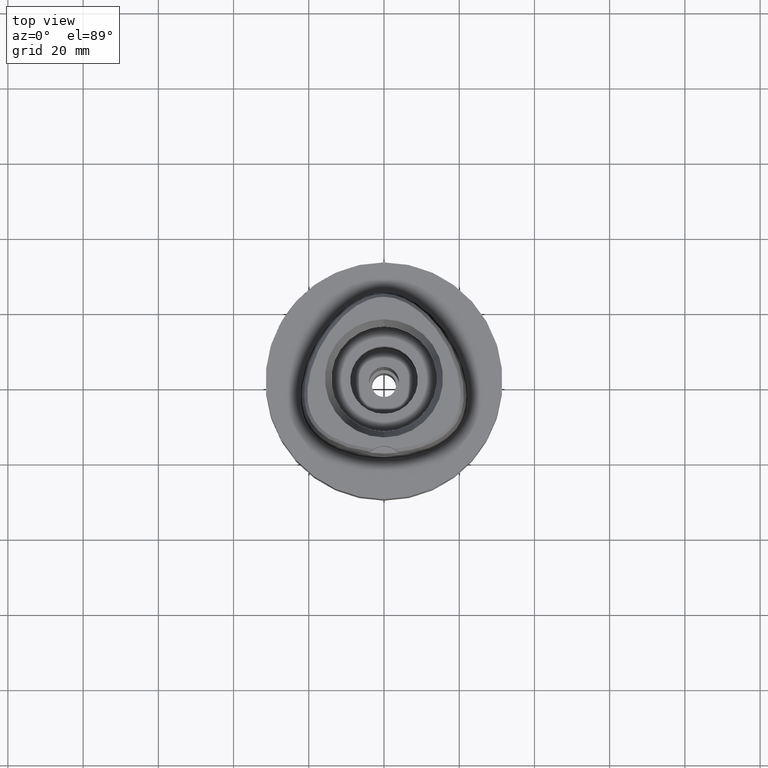
[diagram: clean part render]
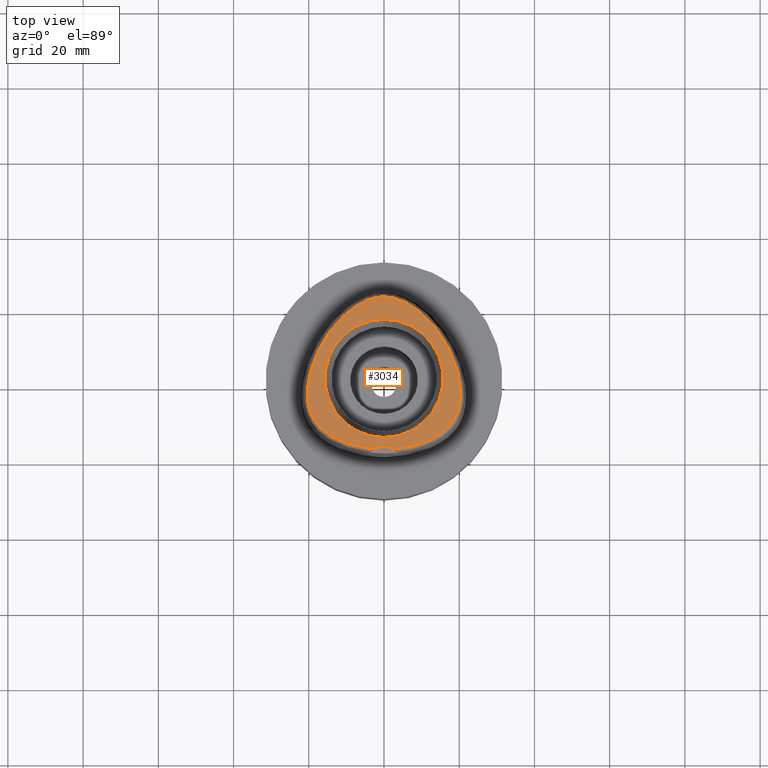
[diagram: same view with one face highlighted and labeled with its STEP entity id]
A machine part, top view. The second image highlights one B-rep face of the part: STEP entity #3034.
In plain terms, the highlighted planar face has unit normal (0, 0, 1).
Its self-contained STEP definition (entity closure, byte-faithful):
#39 = CARTESIAN_POINT ( 'NONE',  ( 15.72078707640275574, -14.29615620309373725, 38.00000000000339639 ) ) ;
#63 = CARTESIAN_POINT ( 'NONE',  ( 0.0000000000000000000, 0.0000000000000000000, 38.00000000000000000 ) ) ;
#174 = CARTESIAN_POINT ( 'NONE',  ( -19.28591707036956038, -9.869682450885980174, 37.99999999999725731 ) ) ;
#202 = CARTESIAN_POINT ( 'NONE',  ( -12.37132652997196303, -16.34104299087801948, 38.00000000000271427 ) ) ;
#210 = CARTESIAN_POINT ( 'NONE',  ( 5.894487344449604649, 20.13186406531790951, 37.99999999999757705 ) ) ;
#230 = CARTESIAN_POINT ( 'NONE',  ( -16.09805956313946140, 9.908742513515788275, 38.00000000000823519 ) ) ;
#260 = CARTESIAN_POINT ( 'NONE',  ( -2.841965291530351490, -18.76757795571605669, 37.99999999999733546 ) ) ;
#264 = CARTESIAN_POINT ( 'NONE',  ( 3.482188079159548089, 21.13472718027537667, 37.99999999999935341 ) ) ;
#281 = CARTESIAN_POINT ( 'NONE',  ( -17.60426951086551739, 7.098774535281354048, 37.99999999999950262 ) ) ;
#311 = CIRCLE ( 'NONE', #4562, 15.71487483155999776 ) ;
#326 = CARTESIAN_POINT ( 'NONE',  ( 14.21382211799300244, -15.34284287400313751, 37.99999999999565858 ) ) ;
#399 = CARTESIAN_POINT ( 'NONE',  ( 16.93855157777965914, -13.22377441789464747, 37.99999999999339906 ) ) ;
#405 = CARTESIAN_POINT ( 'NONE',  ( -1.323674540693833279, 21.61098849315860448, 38.00000000000457590 ) ) ;
#423 = CARTESIAN_POINT ( 'NONE',  ( 19.64387775267860903, 1.522048414457948695, 37.99999999999600675 ) ) ;
#566 = CARTESIAN_POINT ( 'NONE',  ( -4.254559144977255514, 20.86660163697503023, 38.00000000000090949 ) ) ;
#596 = CARTESIAN_POINT ( 'NONE',  ( 5.059249257020407065, 20.53399274679166808, 37.99999999999823075 ) ) ;
#610 = DIRECTION ( 'NONE',  ( 0.0000000000000000000, 0.0000000000000000000, 1.000000000000000000 ) ) ;
#612 = VERTEX_POINT ( 'NONE', #2193 ) ;
#615 = CARTESIAN_POINT ( 'NONE',  ( -18.31748213707557582, -11.58791794387549778, 38.00000000000081002 ) ) ;
#637 = FACE_BOUND ( 'NONE', #3365, .T. ) ;
#645 = CARTESIAN_POINT ( 'NONE',  ( -15.24692477332460605, 11.25717358966358006, 38.00000000000461853 ) ) ;
#671 = CARTESIAN_POINT ( 'NONE',  ( -20.16012968311358478, -1.009698174524759962, 38.00000000000622435 ) ) ;
#694 = EDGE_CURVE ( 'NONE', #2716, #2167, #2762, .T. ) ;
#727 = CARTESIAN_POINT ( 'NONE',  ( 16.09765529146527996, 9.909410920132627254, 37.99999999999869971 ) ) ;
#743 = CARTESIAN_POINT ( 'NONE',  ( 11.32341394162765802, -16.80569392800552464, 37.99999999999633360 ) ) ;
#764 = CARTESIAN_POINT ( 'NONE',  ( 20.40062138794888469, -4.309334958867679255, 37.99999999999992895 ) ) ;
#789 = CARTESIAN_POINT ( 'NONE',  ( 16.88599964842928358, 8.518708218769949880, 38.00000000000226663 ) ) ;
#815 = CARTESIAN_POINT ( 'NONE',  ( 19.98468477322872161, -7.807876343102972072, 37.99999999999874234 ) ) ;
#957 = CARTESIAN_POINT ( 'NONE',  ( -15.71788912669270033, -14.29843101566032004, 37.99999999999513278 ) ) ;
#983 = CARTESIAN_POINT ( 'NONE',  ( -16.93638123745300916, -13.22593246128060329, 37.99999999999871392 ) ) ;
#1005 = CARTESIAN_POINT ( 'NONE',  ( -6.188376196366591309, -18.31830638230986352, 37.99999999999686651 ) ) ;
#1013 = CARTESIAN_POINT ( 'NONE',  ( 9.524842839487678958, 17.70516372194755306, 38.00000000000531486 ) ) ;
#1032 = CARTESIAN_POINT ( 'NONE',  ( -3.522896839654260148, -18.70811514173244561, 38.00000000000022737 ) ) ;
#1056 = CARTESIAN_POINT ( 'NONE',  ( -9.524337278000954754, 17.70558492631516501, 38.00000000000309797 ) ) ;
#1057 = AXIS2_PLACEMENT_3D ( 'NONE', #1487, #3386, #3791 ) ;
#1098 = CARTESIAN_POINT ( 'NONE',  ( 20.38292172607743069, -3.276278498261492533, 38.00000000000055422 ) ) ;
#1108 = CARTESIAN_POINT ( 'NONE',  ( 15.24661770199240252, 11.25762885478513020, 37.99999999999914024 ) ) ;
#1122 = CARTESIAN_POINT ( 'NONE',  ( 19.94150023627877033, 0.2261566111943263124, 38.00000000000039080 ) ) ;
#1151 = CARTESIAN_POINT ( 'NONE',  ( 17.91165267839043906, -12.13575389397787241, 38.00000000000670752 ) ) ;
#1175 = CARTESIAN_POINT ( 'NONE',  ( 18.24247239569413992, 5.672548708072100432, 38.00000000000159162 ) ) ;
#1242 = ORIENTED_EDGE ( 'NONE', *, *, #2598, .F. ) ;
#1329 = ORIENTED_EDGE ( 'NONE', *, *, #694, .F. ) ;
#1361 = CARTESIAN_POINT ( 'NONE',  ( -10.17136073855416001, -17.24644253470294331, 38.00000000000351719 ) ) ;
#1389 = CARTESIAN_POINT ( 'NONE',  ( -19.54919922642051944, -9.228169790567722686, 38.00000000000732570 ) ) ;
#1394 = CARTESIAN_POINT ( 'NONE',  ( 8.578848111816313349, 18.44609846599398750, 37.99999999999702993 ) ) ;
#1412 = CARTESIAN_POINT ( 'NONE',  ( -19.64434054693060716, 1.520253387635275066, 37.99999999999936051 ) ) ;
#1434 = CARTESIAN_POINT ( 'NONE',  ( -2.682279906006999948, -18.78035848609999903, 38.00000000000000000 ) ) ;
#1456 = ORIENTED_EDGE ( 'NONE', *, *, #1745, .F. ) ;
#1487 = CARTESIAN_POINT ( 'NONE',  ( 0.0000000000000000000, -23.00000000000000000, 38.00000000000000000 ) ) ;
#1527 = CARTESIAN_POINT ( 'NONE',  ( 20.27923816685611058, -6.179850483268304551, 38.00000000000630251 ) ) ;
#1554 = CARTESIAN_POINT ( 'NONE',  ( 20.36412151361016143, -5.276385427453814003, 38.00000000000321165 ) ) ;
#1559 = EDGE_CURVE ( 'NONE', #2167, #2716, #311, .T. ) ;
#1717 = EDGE_CURVE ( 'NONE', #612, #4742, #4397, .T. ) ;
#1745 = EDGE_CURVE ( 'NONE', #2964, #612, #4758, .T. ) ;
#1765 = CARTESIAN_POINT ( 'NONE',  ( -17.45119705493653939, -12.68365517585497848, 38.00000000000139266 ) ) ;
#1772 = CARTESIAN_POINT ( 'NONE',  ( 2.736932690726892492, 21.34527940056741713, 38.00000000000159162 ) ) ;
#1787 = PLANE ( 'NONE',  #1932 ) ;
#1791 = CARTESIAN_POINT ( 'NONE',  ( -19.98419490691662759, -7.809898894995680685, 38.00000000000208900 ) ) ;
#1815 = CARTESIAN_POINT ( 'NONE',  ( -10.48962422759582402, 16.86631853278957749, 38.00000000000845546 ) ) ;
#1820 = CARTESIAN_POINT ( 'NONE',  ( 0.6513209347955158934, 21.67370899611583113, 38.00000000000384404 ) ) ;
#1838 = CARTESIAN_POINT ( 'NONE',  ( -18.24302769441894156, 5.671232572957634055, 37.99999999999837286 ) ) ;
#1884 = CARTESIAN_POINT ( 'NONE',  ( 18.99619228226005063, -10.46780014453122476, 37.99999999999647571 ) ) ;
#1932 = AXIS2_PLACEMENT_3D ( 'NONE', #2165, #610, #3677 ) ;
#1934 = DIRECTION ( 'NONE',  ( 0.0000000000000000000, -1.000000000000000000, 0.0000000000000000000 ) ) ;
#1935 = CARTESIAN_POINT ( 'NONE',  ( 18.31883910943179217, -11.58595831188103986, 37.99999999999685230 ) ) ;
#1961 = CARTESIAN_POINT ( 'NONE',  ( 20.30478359881587380, -2.175347700950692076, 37.99999999999565148 ) ) ;
#1984 = CARTESIAN_POINT ( 'NONE',  ( 10.17751632998346345, -17.24426134458756721, 37.99999999999538147 ) ) ;
#1987 = ORIENTED_EDGE ( 'NONE', *, *, #1559, .F. ) ;
#2119 = CARTESIAN_POINT ( 'NONE',  ( -4.706994425064161547, -18.56721852572600184, 38.00000000000557066 ) ) ;
#2142 = CARTESIAN_POINT ( 'NONE',  ( -8.930096025510344759, -17.65000298921228961, 38.00000000000022737 ) ) ;
#2165 = CARTESIAN_POINT ( 'NONE',  ( 0.0000000000000000000, 0.0000000000000000000, 38.00000000000000000 ) ) ;
#2167 = VERTEX_POINT ( 'NONE', #3119 ) ;
#2170 = CARTESIAN_POINT ( 'NONE',  ( -18.79649882724622145, 4.256255933891085697, 37.99999999999914735 ) ) ;
#2193 = CARTESIAN_POINT ( 'NONE',  ( 2.682287482605000051, -18.78036330228999873, 38.00000000000000000 ) ) ;
#2198 = CARTESIAN_POINT ( 'NONE',  ( -17.91005512243349429, -12.13778127739936608, 38.00000000000377298 ) ) ;
#2207 = CARTESIAN_POINT ( 'NONE',  ( 0.2185816947241431829, 21.68728795389630903, 38.00000000000012079 ) ) ;
#2224 = CARTESIAN_POINT ( 'NONE',  ( -19.78262210840384938, -8.543146992552404839, 38.00000000000411404 ) ) ;
#2272 = CARTESIAN_POINT ( 'NONE',  ( -3.470663397112000128E-11, 21.68728795390000030, 38.00000000000000000 ) ) ;
#2279 = CARTESIAN_POINT ( 'NONE',  ( 11.46587147800212136, 15.92717600803108091, 38.00000000000191847 ) ) ;
#2318 = CARTESIAN_POINT ( 'NONE',  ( 18.67722910597889552, -11.03372143227694302, 38.00000000000062528 ) ) ;
#2334 = ORIENTED_EDGE ( 'NONE', *, *, #1717, .F. ) ;
#2343 = CARTESIAN_POINT ( 'NONE',  ( 17.45306278053404725, -12.68156296993558918, 38.00000000000478195 ) ) ;
#2368 = CARTESIAN_POINT ( 'NONE',  ( 19.54993126782024859, -9.226212439885449257, 38.00000000000204636 ) ) ;
#2477 = CARTESIAN_POINT ( 'NONE',  ( -3.470663397112000128E-11, 21.68728795390000030, 38.00000000000000000 ) ) ;
#2508 = CARTESIAN_POINT ( 'NONE',  ( -5.893543501600334800, 20.13235399351726684, 38.00000000000839862 ) ) ;
#2535 = CARTESIAN_POINT ( 'NONE',  ( -15.00295592773600362, -14.82617991125479762, 37.99999999999990763 ) ) ;
#2541 = CARTESIAN_POINT ( 'NONE',  ( 1.325020189552575278, 21.61081414409154533, 37.99999999999590017 ) ) ;
#2566 = CARTESIAN_POINT ( 'NONE',  ( 10.48999540691172783, 16.86597469869775168, 38.00000000000228084 ) ) ;
#2587 = CARTESIAN_POINT ( 'NONE',  ( -18.99520880204253359, -10.46968343926287481, 38.00000000000647304 ) ) ;
#2598 = EDGE_CURVE ( 'NONE', #4742, #2964, #3010, .T. ) ;
#2669 = CARTESIAN_POINT ( 'NONE',  ( 13.40430406168803223, 13.76274261013368871, 38.00000000000369482 ) ) ;
#2685 = CARTESIAN_POINT ( 'NONE',  ( 18.79595068775957856, 4.257753965101723992, 38.00000000000530065 ) ) ;
#2716 = VERTEX_POINT ( 'NONE', #4601 ) ;
#2733 = CARTESIAN_POINT ( 'NONE',  ( 17.60373714028467518, 7.099883643192264948, 37.99999999999456435 ) ) ;
#2738 = CARTESIAN_POINT ( 'NONE',  ( -0.6498990081534165020, 21.67378274708351782, 37.99999999999963052 ) ) ;
#2762 = CIRCLE ( 'NONE', #4387, 15.71487483155999776 ) ;
#2892 = CARTESIAN_POINT ( 'NONE',  ( -7.655222869371210770, 19.09452359226497720, 37.99999999999389644 ) ) ;
#2916 = CARTESIAN_POINT ( 'NONE',  ( -11.31790883121226976, -16.80796958613498049, 38.00000000000162714 ) ) ;
#2943 = CARTESIAN_POINT ( 'NONE',  ( -20.40060226222436057, -4.311417605381343776, 38.00000000000304823 ) ) ;
#2964 = VERTEX_POINT ( 'NONE', #2477 ) ;
#2965 = CARTESIAN_POINT ( 'NONE',  ( -11.46564124494203440, 15.92741340513355652, 38.00000000000192557 ) ) ;
#2995 = CARTESIAN_POINT ( 'NONE',  ( -20.38301517462850398, -3.278344853327613162, 38.00000000000442668 ) ) ;
#3010 = B_SPLINE_CURVE_WITH_KNOTS ( 'NONE', 3,
 ( #1434, #260, #1032, #2119, #1005, #3302, #2142, #1361, #2916, #202, #4476, #4863, #2535, #957, #4090, #983, #1765, #2198, #615, #4892, #2587, #174, #1389, #2224, #1791, #4175, #3783, #3330, #2943, #2995, #4115, #671, #4525, #1412, #4917, #2170, #1838, #281, #3730, #230, #645, #3358, #4143, #4554, #2965, #1815, #1056, #4836, #2892, #4449, #2508, #4065, #566, #5042, #3476, #4989, #405, #2738, #3427, #2272 ),
 .UNSPECIFIED., .F., .F.,
 ( 4, 1, 1, 1, 1, 1, 1, 1, 1, 1, 1, 1, 1, 1, 1, 1, 1, 1, 1, 1, 1, 1, 1, 1, 1, 1, 1, 1, 1, 1, 1, 1, 1, 1, 1, 1, 1, 1, 1, 1, 1, 1, 1, 1, 1, 1, 1, 1, 1, 1, 1, 1, 1, 1, 1, 1, 1, 4 ),
 ( 0.0000000000000000000, 0.005420919554200098744, 0.02318126027639999531, 0.04094160099879995407, 0.05870194172099996166, 0.07646228244330000035, 0.09422262316550000794, 0.1119829638877999356, 0.1297433046099999432, 0.1475036453321999508, 0.1652639860544999895, 0.1830243267768000281, 0.2007846674991000668, 0.2185450082212999634, 0.2363053489436000021, 0.2540656896658000097, 0.2718260303881000484, 0.2895863711103000560, 0.3073467118325999836, 0.3251070525547999912, 0.3428673932771000299, 0.3606277339994000686, 0.3783880747216000762, 0.3961484154438998928, 0.4139087561661000114, 0.4316690968884000501, 0.4494294376106000577, 0.4671897783328999854, 0.4849501190552000240, 0.5027104597774000316, 0.5204708004996999593, 0.5382311412219000779, 0.5559914819442000056, 0.5737518226664000132, 0.5915121633886999408, 0.6092725041108999484, 0.6270328448331999871, 0.6447931855555000258, 0.6625535262777000334, 0.6803138669999999610, 0.6980742077221999686, 0.7158345484445000073, 0.7335948891667000149, 0.7513552298890000536, 0.7691155706112000612, 0.7868759113336000199, 0.8046362520558000275, 0.8223965927780999552, 0.8401569335002999628, 0.8579172742224999704, 0.8756776149448000091, 0.8934379556670000166, 0.9111982963893099363, 0.9289586371115700070, 0.9467189778338299666, 0.9644793185560800453, 0.9822396592783400049, 1.000000000000000000 ),
 .UNSPECIFIED. ) ;
#3034 = ADVANCED_FACE ( 'NONE', ( #4136, #637 ), #1787, .T. ) ;
#3045 = CARTESIAN_POINT ( 'NONE',  ( -3.470663397112000128E-11, 21.68728795390000030, 38.00000000000000000 ) ) ;
#3087 = CARTESIAN_POINT ( 'NONE',  ( 3.529311563348320302, -18.70747079910044874, 37.99999999999880629 ) ) ;
#3114 = CARTESIAN_POINT ( 'NONE',  ( 19.78323211893120259, -8.541156231035595070, 37.99999999999450040 ) ) ;
#3119 = CARTESIAN_POINT ( 'NONE',  ( 0.0000000000000000000, 15.71487483155999776, 38.00000000000000000 ) ) ;
#3138 = CARTESIAN_POINT ( 'NONE',  ( 16.36283630828731361, -13.76236604534974184, 38.00000000000290612 ) ) ;
#3164 = CARTESIAN_POINT ( 'NONE',  ( 19.26272899268737859, 2.870227893749708326, 37.99999999999602096 ) ) ;
#3302 = CARTESIAN_POINT ( 'NONE',  ( -7.599370508970438642, -18.01010694911437682, 38.00000000000515143 ) ) ;
#3330 = CARTESIAN_POINT ( 'NONE',  ( -20.36398648679623591, -5.278470727085037950, 38.00000000000417799 ) ) ;
#3338 = CARTESIAN_POINT ( 'NONE',  ( 6.760281394350775130, 19.65404668909433994, 37.99999999999548095 ) ) ;
#3358 = CARTESIAN_POINT ( 'NONE',  ( -14.34402387965564962, 12.54761970512539548, 37.99999999999857891 ) ) ;
#3365 = EDGE_LOOP ( 'NONE', ( #1329, #1987 ) ) ;
#3386 = DIRECTION ( 'NONE',  ( 0.0000000000000000000, 0.0000000000000000000, 1.000000000000000000 ) ) ;
#3407 = DIRECTION ( 'NONE',  ( 0.0000000000000000000, 0.0000000000000000000, 1.000000000000000000 ) ) ;
#3427 = CARTESIAN_POINT ( 'NONE',  ( -0.2181979014508448056, 21.68728795389296948, 37.99999999999807443 ) ) ;
#3446 = CARTESIAN_POINT ( 'NONE',  ( 4.715576077241646402, -18.56597918135144454, 37.99999999999459277 ) ) ;
#3471 = CARTESIAN_POINT ( 'NONE',  ( 19.28677546796512132, -9.867757137505527965, 38.00000000000315481 ) ) ;
#3476 = CARTESIAN_POINT ( 'NONE',  ( -2.735698246183218885, 21.34559102902296956, 37.99999999999954525 ) ) ;
#3523 = CARTESIAN_POINT ( 'NONE',  ( 6.196495988003598576, -18.31673538864666995, 38.00000000000319744 ) ) ;
#3677 = DIRECTION ( 'NONE',  ( 1.000000000000000000, 0.0000000000000000000, 0.0000000000000000000 ) ) ;
#3730 = CARTESIAN_POINT ( 'NONE',  ( -16.88647904405563338, 8.517821442301711343, 38.00000000000228795 ) ) ;
#3738 = CARTESIAN_POINT ( 'NONE',  ( 0.0000000000000000000, 0.0000000000000000000, 38.00000000000000000 ) ) ;
#3766 = CARTESIAN_POINT ( 'NONE',  ( 2.018320379028204492, 21.50256508436723379, 37.99999999999642597 ) ) ;
#3783 = CARTESIAN_POINT ( 'NONE',  ( -20.27898581532205569, -6.181921586190009421, 38.00000000000273559 ) ) ;
#3791 = DIRECTION ( 'NONE',  ( 0.0000000000000000000, 1.000000000000000000, 0.0000000000000000000 ) ) ;
#3902 = CARTESIAN_POINT ( 'NONE',  ( 15.00628712263134013, -14.82385870794641569, 37.99999999999631939 ) ) ;
#3923 = CARTESIAN_POINT ( 'NONE',  ( 20.15127154947105126, -7.022178451340995942, 38.00000000000486011 ) ) ;
#4065 = CARTESIAN_POINT ( 'NONE',  ( -5.058220461389083766, 20.53445508814491305, 38.00000000000043343 ) ) ;
#4090 = CARTESIAN_POINT ( 'NONE',  ( -16.36032397153500639, -13.76458520345290459, 38.00000000000711253 ) ) ;
#4097 = CARTESIAN_POINT ( 'NONE',  ( 4.255661039972379989, 20.86618068829756822, 37.99999999999899103 ) ) ;
#4115 = CARTESIAN_POINT ( 'NONE',  ( -20.30498420086185618, -2.177378896258180152, 38.00000000000118661 ) ) ;
#4136 = FACE_OUTER_BOUND ( 'NONE', #4332, .T. ) ;
#4143 = CARTESIAN_POINT ( 'NONE',  ( -13.40435640711573484, 13.76268382997008999, 37.99999999999655387 ) ) ;
#4175 = CARTESIAN_POINT ( 'NONE',  ( -20.15090095364617184, -7.024227649787116334, 38.00000000000301270 ) ) ;
#4219 = CARTESIAN_POINT ( 'NONE',  ( 2.845098933833445809, -18.76733062685850584, 37.99999999999891998 ) ) ;
#4228 = CARTESIAN_POINT ( 'NONE',  ( 14.34383722811378092, 12.54786717290380693, 37.99999999999524647 ) ) ;
#4244 = CARTESIAN_POINT ( 'NONE',  ( 13.33890749495301975, -15.84912955619993014, 37.99999999999462119 ) ) ;
#4290 = DIRECTION ( 'NONE',  ( 0.0000000000000000000, 0.0000000000000000000, 1.000000000000000000 ) ) ;
#4292 = CARTESIAN_POINT ( 'NONE',  ( 12.37622418510070865, -16.33871033285774388, 37.99999999999786127 ) ) ;
#4332 = EDGE_LOOP ( 'NONE', ( #1456, #1242, #2334 ) ) ;
#4387 = AXIS2_PLACEMENT_3D ( 'NONE', #63, #4290, #1934 ) ;
#4397 = CIRCLE ( 'NONE', #1057, 5.000000000000000888 ) ;
#4449 = CARTESIAN_POINT ( 'NONE',  ( -6.759433772716816335, 19.65454812513036842, 37.99999999999797495 ) ) ;
#4476 = CARTESIAN_POINT ( 'NONE',  ( -13.33457781970473910, -15.85148397417684230, 38.00000000000743938 ) ) ;
#4525 = CARTESIAN_POINT ( 'NONE',  ( -19.94188961899723367, 0.2242544969874663841, 38.00000000000742517 ) ) ;
#4554 = CARTESIAN_POINT ( 'NONE',  ( -12.44116897271238642, 14.89128547409908698, 38.00000000000505196 ) ) ;
#4562 = AXIS2_PLACEMENT_3D ( 'NONE', #3738, #3407, #4950 ) ;
#4601 = CARTESIAN_POINT ( 'NONE',  ( 0.0000000000000000000, -15.71487483155999776, 38.00000000000000000 ) ) ;
#4605 = CARTESIAN_POINT ( 'NONE',  ( 12.44125753246233756, 14.89118158853577434, 37.99999999999744205 ) ) ;
#4619 = CARTESIAN_POINT ( 'NONE',  ( 8.936919536467129888, -17.64796721715324423, 37.99999999999658229 ) ) ;
#4673 = CARTESIAN_POINT ( 'NONE',  ( 2.682287482605000051, -18.78036330228999873, 38.00000000000000000 ) ) ;
#4742 = VERTEX_POINT ( 'NONE', #4938 ) ;
#4758 = B_SPLINE_CURVE_WITH_KNOTS ( 'NONE', 3,
 ( #3045, #2207, #1820, #2541, #3766, #1772, #264, #4097, #596, #210, #3338, #4901, #1394, #1013, #2566, #2279, #4605, #2669, #4228, #1108, #727, #789, #2733, #1175, #2685, #3164, #423, #1122, #5037, #1961, #1098, #764, #1554, #1527, #3923, #815, #3114, #2368, #3471, #1884, #2318, #1935, #1151, #2343, #399, #3138, #39, #3902, #326, #4244, #4292, #743, #1984, #4619, #5063, #3523, #3446, #3087, #4219, #4673 ),
 .UNSPECIFIED., .F., .F.,
 ( 4, 1, 1, 1, 1, 1, 1, 1, 1, 1, 1, 1, 1, 1, 1, 1, 1, 1, 1, 1, 1, 1, 1, 1, 1, 1, 1, 1, 1, 1, 1, 1, 1, 1, 1, 1, 1, 1, 1, 1, 1, 1, 1, 1, 1, 1, 1, 1, 1, 1, 1, 1, 1, 1, 1, 1, 1, 4 ),
 ( 0.0000000000000000000, 0.01775854187129999318, 0.03551708374169992855, 0.05327562561200005486, 0.07103416748239999023, 0.08879270935270000553, 0.1065512512231000519, 0.1243097930933999562, 0.1420683349638000026, 0.1598268768341000179, 0.1775854187044000332, 0.1953439605747999686, 0.2131025024450999839, 0.2308610443155000302, 0.2486195861857999345, 0.2663781280563000120, 0.2841366699266000273, 0.3018952117970000737, 0.3196537536672999780, 0.3374122955377000244, 0.3551708374080000397, 0.3729293792782999439, 0.3906879211486999903, 0.4084464630190000056, 0.4262050048894000520, 0.4439635467596999563, 0.4617220886301000027, 0.4794806305004000180, 0.4972391723707999533, 0.5149977142410999686, 0.5327562561113999839, 0.5505147979818000303, 0.5682733398521000456, 0.5860318817224999810, 0.6037904235927999963, 0.6215489654632000427, 0.6393075073334999470, 0.6570660492038999934, 0.6748245910742000087, 0.6925831329445000240, 0.7103416748149000703, 0.7281002166851999746, 0.7458587585556000210, 0.7636173004259000363, 0.7813758422962999717, 0.7991343841665999870, 0.8168929260370000334, 0.8346514679073000487, 0.8524100097776999840, 0.8701685516479999993, 0.8879270935183000146, 0.9056856353886799660, 0.9234441772589799813, 0.9412027191293600437, 0.9589612609997000270, 0.9767198028700500023, 0.9944783447403919840, 1.000000000000000000 ),
 .UNSPECIFIED. ) ;
#4836 = CARTESIAN_POINT ( 'NONE',  ( -8.578220530112679043, 18.44656747109539907, 38.00000000000359535 ) ) ;
#4863 = CARTESIAN_POINT ( 'NONE',  ( -14.21001600787189822, -15.34519100085581833, 37.99999999999902656 ) ) ;
#4892 = CARTESIAN_POINT ( 'NONE',  ( -18.67608643721425210, -11.03561202290685728, 37.99999999999811706 ) ) ;
#4901 = CARTESIAN_POINT ( 'NONE',  ( 7.655962789342768637, 19.09402979099741771, 38.00000000000660094 ) ) ;
#4917 = CARTESIAN_POINT ( 'NONE',  ( -19.26324493738128041, 2.868570891456522443, 38.00000000000369482 ) ) ;
#4938 = CARTESIAN_POINT ( 'NONE',  ( -2.682279906006999948, -18.78035848609999903, 38.00000000000000000 ) ) ;
#4950 = DIRECTION ( 'NONE',  ( 0.0000000000000000000, 1.000000000000000000, 0.0000000000000000000 ) ) ;
#4989 = CARTESIAN_POINT ( 'NONE',  ( -2.017025177696581739, 21.50280829368222157, 37.99999999999641886 ) ) ;
#5037 = CARTESIAN_POINT ( 'NONE',  ( 20.15982952132371508, -1.007721426051646496, 38.00000000000481748 ) ) ;
#5042 = CARTESIAN_POINT ( 'NONE',  ( -3.481017203588338216, 21.13509756881736124, 38.00000000000308376 ) ) ;
#5063 = CARTESIAN_POINT ( 'NONE',  ( 7.606839420237343496, -18.00827588386509959, 37.99999999999980105 ) ) ;